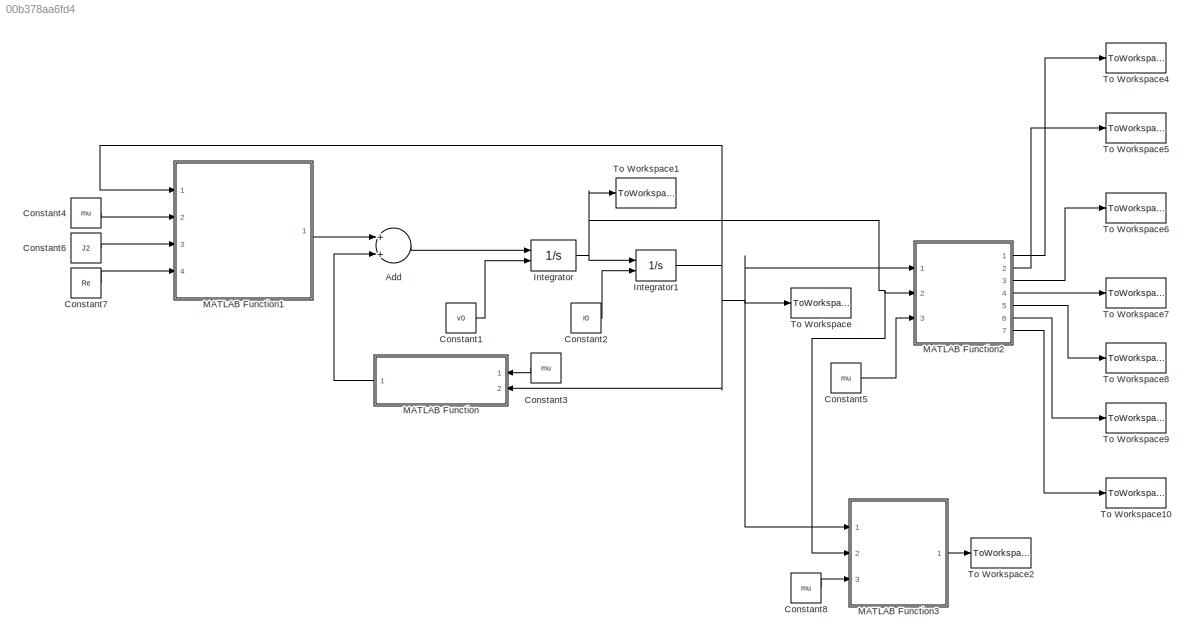
MODEL slx_00b378aa6fd4
KIND model
CONFIG AbsTol = auto
CONFIG EnableMultiTasking = off
CONFIG FixedStep = stepSize
CONFIG MaxStep = auto
CONFIG MinStep = auto
CONFIG RelTol = 1e-3
CONFIG SampleTimeConstraint = Unconstrained
CONFIG Solver = FixedStepAuto
CONFIG SolverName = FixedStepAuto
CONFIG StartTime = 0.0
CONFIG StopTime = stopTime
BLOCK [Sum] Add
  InputSameDT = off
  OutDataTypeStr = Inherit: Inherit via internal rule
  Ports = [2, 1]
  SaturateOnIntegerOverflow = off
BLOCK [Constant] Constant1
  Value = v0
  VectorParams1D = off
BLOCK [Constant] Constant2
  Value = r0
  VectorParams1D = off
BLOCK [Constant] Constant3
  Value = mu
BLOCK [Constant] Constant4
  Value = mu
BLOCK [Constant] Constant5
  Value = mu
BLOCK [Constant] Constant6
  Value = J2
BLOCK [Constant] Constant7
  Value = Re
BLOCK [Constant] Constant8
  Value = mu
BLOCK [Integrator] Integrator
  InitialConditionSource = external
  Ports = [2, 1]
BLOCK [Integrator] Integrator1
  InitialConditionSource = external
  Ports = [2, 1]
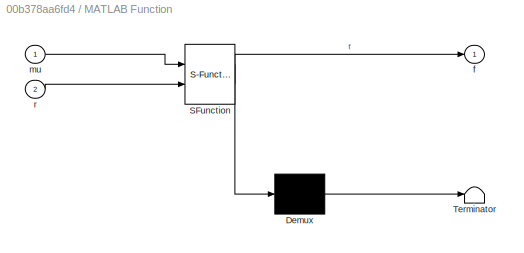
BLOCK [SubSystem] MATLAB Function
  ErrorFcn = Stateflow.Translate.translate
  PermitHierarchicalResolution = ExplicitOnly
  Ports = [2, 1]
  RequestExecContextInheritance = off
  SFBlockType = MATLAB Function
  TreatAsAtomicUnit = on
BLOCK [Demux] MATLAB Function/ Demux 
  Outputs = 1
  Ports = [1, 1]
BLOCK [S-Function] MATLAB Function/ SFunction 
  EnableBusSupport = on
  FunctionName = sf_sfun
  PortCounts = [2 2]
  Ports = [2, 2]
  SFcnIsStateOwnerBlock = off
  SFunctionDeploymentMode = off
  Tag = Stateflow S-Function J2_Accel 2
BLOCK [Terminator] MATLAB Function/ Terminator 
BLOCK [Outport] MATLAB Function/f
  IconDisplay = Port number
BLOCK [Inport] MATLAB Function/mu
  IconDisplay = Port number
BLOCK [Inport] MATLAB Function/r
  IconDisplay = Port number
  Port = 2
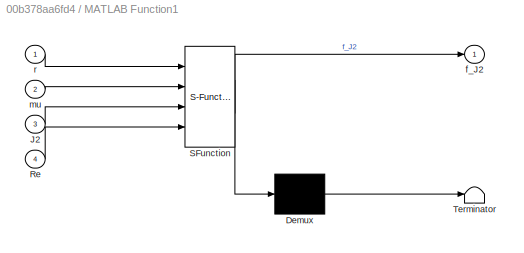
BLOCK [SubSystem] MATLAB Function1
  ErrorFcn = Stateflow.Translate.translate
  PermitHierarchicalResolution = ExplicitOnly
  Ports = [4, 1]
  RequestExecContextInheritance = off
  SFBlockType = MATLAB Function
  TreatAsAtomicUnit = on
BLOCK [Demux] MATLAB Function1/ Demux 
  Outputs = 1
  Ports = [1, 1]
BLOCK [S-Function] MATLAB Function1/ SFunction 
  EnableBusSupport = on
  FunctionName = sf_sfun
  PortCounts = [4 2]
  Ports = [4, 2]
  SFcnIsStateOwnerBlock = off
  SFunctionDeploymentMode = off
  Tag = Stateflow S-Function J2_Accel 1
BLOCK [Terminator] MATLAB Function1/ Terminator 
BLOCK [Inport] MATLAB Function1/J2
  IconDisplay = Port number
  Port = 3
BLOCK [Inport] MATLAB Function1/Re
  IconDisplay = Port number
  Port = 4
BLOCK [Outport] MATLAB Function1/f_J2
  IconDisplay = Port number
BLOCK [Inport] MATLAB Function1/mu
  IconDisplay = Port number
  Port = 2
BLOCK [Inport] MATLAB Function1/r
  IconDisplay = Port number
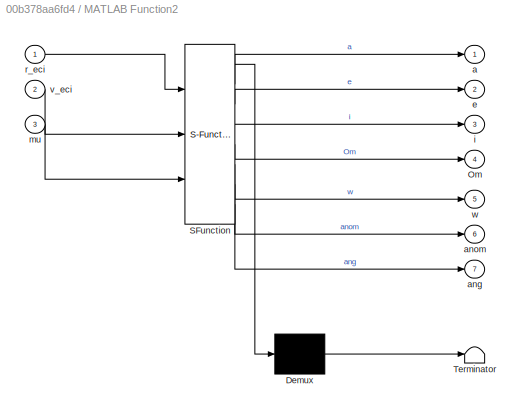
BLOCK [SubSystem] MATLAB Function2
  ErrorFcn = Stateflow.Translate.translate
  PermitHierarchicalResolution = ExplicitOnly
  Ports = [3, 7]
  RequestExecContextInheritance = off
  SFBlockType = MATLAB Function
  TreatAsAtomicUnit = on
BLOCK [Demux] MATLAB Function2/ Demux 
  Outputs = 1
  Ports = [1, 1]
BLOCK [S-Function] MATLAB Function2/ SFunction 
  EnableBusSupport = on
  FunctionName = sf_sfun
  PortCounts = [3 8]
  Ports = [3, 8]
  SFcnIsStateOwnerBlock = off
  SFunctionDeploymentMode = off
  Tag = Stateflow S-Function J2_Accel 4
BLOCK [Terminator] MATLAB Function2/ Terminator 
BLOCK [Outport] MATLAB Function2/Om
  IconDisplay = Port number
  Port = 4
BLOCK [Outport] MATLAB Function2/a
  IconDisplay = Port number
BLOCK [Outport] MATLAB Function2/ang
  IconDisplay = Port number
  Port = 7
BLOCK [Outport] MATLAB Function2/anom
  IconDisplay = Port number
  Port = 6
BLOCK [Outport] MATLAB Function2/e
  IconDisplay = Port number
  Port = 2
BLOCK [Outport] MATLAB Function2/i
  IconDisplay = Port number
  Port = 3
BLOCK [Inport] MATLAB Function2/mu
  IconDisplay = Port number
  Port = 3
BLOCK [Inport] MATLAB Function2/r_eci
  IconDisplay = Port number
BLOCK [Inport] MATLAB Function2/v_eci
  IconDisplay = Port number
  Port = 2
BLOCK [Outport] MATLAB Function2/w
  IconDisplay = Port number
  Port = 5
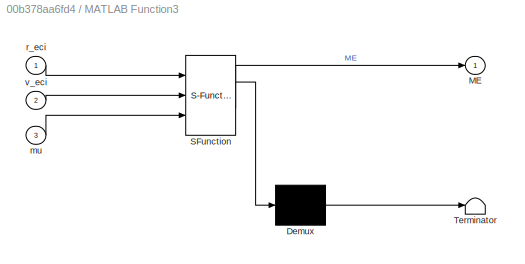
BLOCK [SubSystem] MATLAB Function3
  ErrorFcn = Stateflow.Translate.translate
  PermitHierarchicalResolution = ExplicitOnly
  Ports = [3, 1]
  RequestExecContextInheritance = off
  SFBlockType = MATLAB Function
  TreatAsAtomicUnit = on
BLOCK [Demux] MATLAB Function3/ Demux 
  Outputs = 1
  Ports = [1, 1]
BLOCK [S-Function] MATLAB Function3/ SFunction 
  EnableBusSupport = on
  FunctionName = sf_sfun
  PortCounts = [3 2]
  Ports = [3, 2]
  SFcnIsStateOwnerBlock = off
  SFunctionDeploymentMode = off
  Tag = Stateflow S-Function J2_Accel 3
BLOCK [Terminator] MATLAB Function3/ Terminator 
BLOCK [Outport] MATLAB Function3/ME
  IconDisplay = Port number
BLOCK [Inport] MATLAB Function3/mu
  IconDisplay = Port number
  Port = 3
BLOCK [Inport] MATLAB Function3/r_eci
  IconDisplay = Port number
BLOCK [Inport] MATLAB Function3/v_eci
  IconDisplay = Port number
  Port = 2
BLOCK [ToWorkspace] To Workspace
  FixptAsFi = on
  MaxDataPoints = inf
  Ports = [1]
  SampleTime = -1
  Save2DSignal = 3-D array (concatenate along third dimension)
  VariableName = J2_r
BLOCK [ToWorkspace] To Workspace1
  FixptAsFi = on
  MaxDataPoints = inf
  Ports = [1]
  SampleTime = -1
  Save2DSignal = 3-D array (concatenate along third dimension)
  VariableName = J2_v
BLOCK [ToWorkspace] To Workspace10
  FixptAsFi = on
  MaxDataPoints = inf
  Ports = [1]
  SampleTime = -1
  Save2DSignal = 3-D array (concatenate along third dimension)
  VariableName = osc_ang_J2
BLOCK [ToWorkspace] To Workspace2
  FixptAsFi = on
  MaxDataPoints = inf
  Ports = [1]
  SampleTime = -1
  Save2DSignal = 3-D array (concatenate along third dimension)
  VariableName = osc_ME_J2
BLOCK [ToWorkspace] To Workspace4
  FixptAsFi = on
  MaxDataPoints = inf
  Ports = [1]
  SampleTime = -1
  Save2DSignal = 3-D array (concatenate along third dimension)
  VariableName = osc_a_J2
BLOCK [ToWorkspace] To Workspace5
  FixptAsFi = on
  MaxDataPoints = inf
  Ports = [1]
  SampleTime = -1
  Save2DSignal = 3-D array (concatenate along third dimension)
  VariableName = osc_e_J2
BLOCK [ToWorkspace] To Workspace6
  FixptAsFi = on
  MaxDataPoints = inf
  Ports = [1]
  SampleTime = -1
  Save2DSignal = 3-D array (concatenate along third dimension)
  VariableName = osc_inc_J2
BLOCK [ToWorkspace] To Workspace7
  FixptAsFi = on
  MaxDataPoints = inf
  Ports = [1]
  SampleTime = -1
  Save2DSignal = 3-D array (concatenate along third dimension)
  VariableName = osc_RAAN_J2
BLOCK [ToWorkspace] To Workspace8
  FixptAsFi = on
  MaxDataPoints = inf
  Ports = [1]
  SampleTime = -1
  Save2DSignal = 3-D array (concatenate along third dimension)
  VariableName = osc_w_J2
BLOCK [ToWorkspace] To Workspace9
  FixptAsFi = on
  MaxDataPoints = inf
  Ports = [1]
  SampleTime = -1
  Save2DSignal = 3-D array (concatenate along third dimension)
  VariableName = osc_anom_J2
LINE Add:1 -> Integrator:1
LINE Constant1:1 -> Integrator:2
LINE Constant2:1 -> Integrator1:2
LINE Constant3:1 -> MATLAB Function:1
LINE Constant4:1 -> MATLAB Function1:2
LINE Constant5:1 -> MATLAB Function2:3
LINE Constant6:1 -> MATLAB Function1:3
LINE Constant7:1 -> MATLAB Function1:4
LINE Constant8:1 -> MATLAB Function3:3
NET Integrator1:1 -> MATLAB Function1:1, MATLAB Function2:1, MATLAB Function3:1, MATLAB Function:2, To Workspace:1
NET Integrator:1 -> Integrator1:1, MATLAB Function2:2, MATLAB Function3:2, To Workspace1:1
LINE MATLAB Function1:1 -> Add:1
LINE MATLAB Function2:1 -> To Workspace4:1
LINE MATLAB Function2:2 -> To Workspace5:1
LINE MATLAB Function2:3 -> To Workspace6:1
LINE MATLAB Function2:4 -> To Workspace7:1
LINE MATLAB Function2:5 -> To Workspace8:1
LINE MATLAB Function2:6 -> To Workspace9:1
LINE MATLAB Function2:7 -> To Workspace10:1
LINE MATLAB Function3:1 -> To Workspace2:1
LINE MATLAB Function:1 -> Add:2
note: NET lines group one-source signal fan-out (src -> all destinations, sorted); 1:1 wires keep LINE
CHART MATLAB Function1 states=1 transitions=1
  STATE_LABEL 'eML_blk_kernel()'
  STATE_LABEL 'SCRIPT:\nfunction f_J2 = J2_Accel(r,mu,J2,Re)\n\nf_J2 = mu*r/(norm(r)^3).*...\n    [3/2*J2*(Re/norm(r))^2*(5*(r(3)^2)/(norm(r)^2)-1);...\n    3/2*J2*(Re/norm(r))^2*(5*(r(3)^2)/(norm(r)^2)-1);...\n    3/2*J2*(Re/norm(r))^2*(5*(r(3)^2)/(norm(r)^2)-3)];'
CHART MATLAB Function states=1 transitions=1
  STATE_LABEL 'eML_blk_kernel()'
  STATE_LABEL 'SCRIPT:\nfunction f = FODE_NUM_PROP(mu,r)\n\nf = -mu*r/(norm(r)^3);'
CHART MATLAB Function3 states=1 transitions=1
  STATE_LABEL 'eML_blk_kernel()'
  STATE_LABEL 'SCRIPT:\nfunction ME  = ECI2OE(r_eci, v_eci, mu)\n\nr = norm(r_eci);\nv = norm(v_eci);\n\nME = 0.5*v^2 - mu/r;\n'
CHART MATLAB Function2 states=1 transitions=1
  STATE_LABEL 'eML_blk_kernel()'
  STATE_LABEL 'SCRIPT:\nfunction [a, e, i, Om, w, anom, ang] = ECI2OE(r_eci, v_eci, mu)\n% ECI2OE Converts r and v in the ECI frame to orbital elements\n%\n% Inputs:\n%   r_eci - 3x1 vector of radius in ECI frame [km]\n%   v_eci - 3x1 vector of velocity in ECI frame [km]\n%   mu    - gravitational parameter of central body [km^3/s^2]\n%\n% Outputs:\n%   p     - semi-lactus rectum of orbit [km]\n%   a     - semi-major axis ...<+2126ch>'
